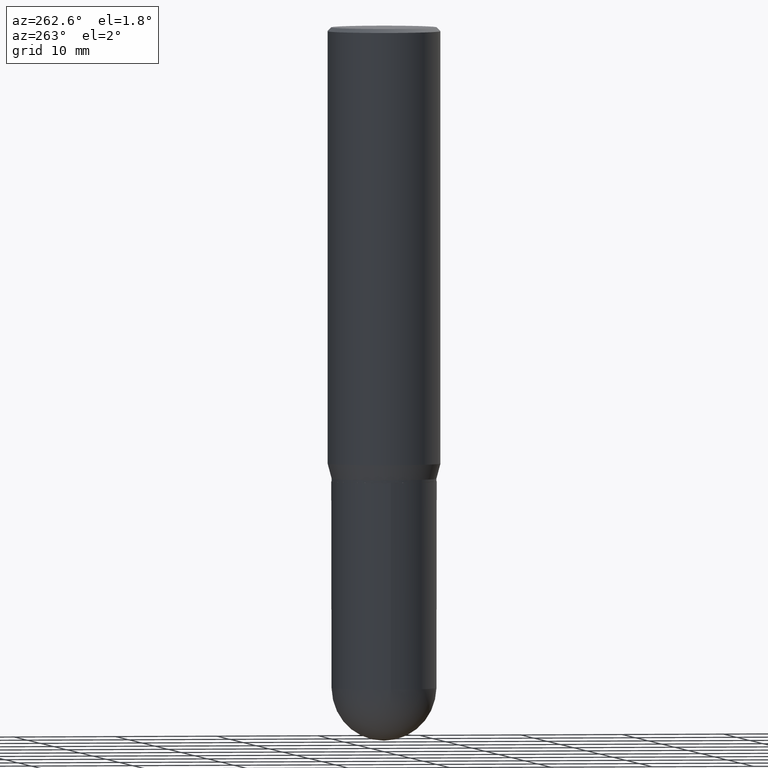
[diagram: clean part render]
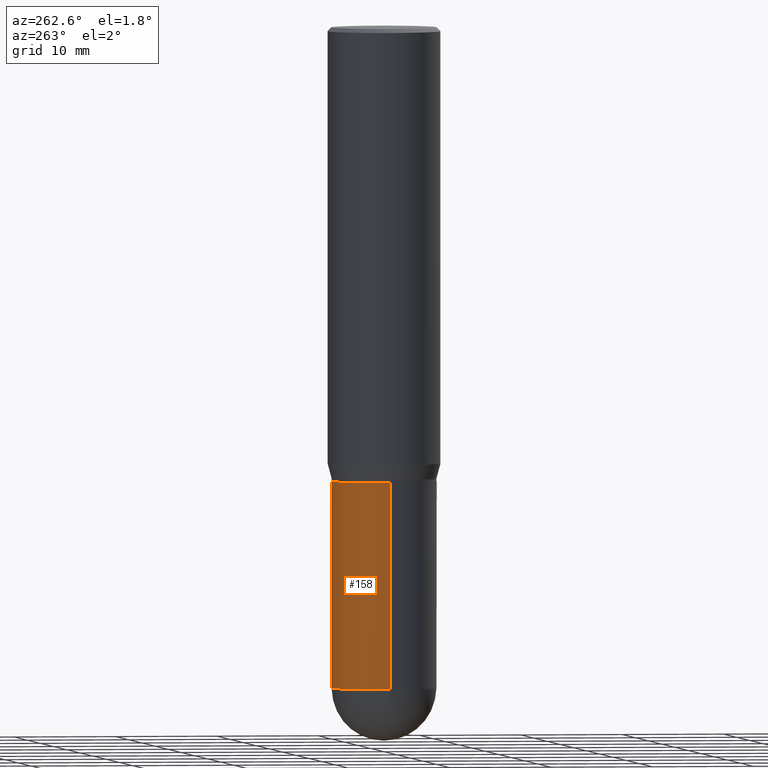
[diagram: same view with one face highlighted and labeled with its STEP entity id]
A machine part, auxiliary view. The second image highlights one B-rep face of the part: STEP entity #158.
In plain terms, the highlighted cylindrical surface (partial cylindrical patch) has radius 5.1587 mm, axis along (-0, 0, 1).
Its self-contained STEP definition (entity closure, byte-faithful):
#15 = CARTESIAN_POINT ( 'NONE',  ( 6.228364502472924746E-29, -8.892453821899607499E-15, -2.546899999999999942 ) ) ;
#18 = VECTOR ( 'NONE', #153, 39.37007874015748143 ) ;
#28 = VECTOR ( 'NONE', #161, 39.37007874015748143 ) ;
#29 = CARTESIAN_POINT ( 'NONE',  ( 0.000000000000000000, 0.000000000000000000, 0.000000000000000000 ) ) ;
#32 = DIRECTION ( 'NONE',  ( -2.445468806185136597E-29, 3.491481338843145583E-15, 1.000000000000000000 ) ) ;
#57 = AXIS2_PLACEMENT_3D ( 'NONE', #187, #348, #229 ) ;
#58 = CARTESIAN_POINT ( 'NONE',  ( -0.2031000000000000028, 1.443112296328763497E-15, -9.990357168307714203E-30 ) ) ;
#77 = AXIS2_PLACEMENT_3D ( 'NONE', #29, #32, #107 ) ;
#98 = ORIENTED_EDGE ( 'NONE', *, *, #241, .F. ) ;
#99 = LINE ( 'NONE', #58, #18 ) ;
#106 = VERTEX_POINT ( 'NONE', #460 ) ;
#107 = DIRECTION ( 'NONE',  ( 1.000000000000000000, -6.982962677686266711E-15, 4.876176775795935793E-29 ) ) ;
#125 = DIRECTION ( 'NONE',  ( -2.445468806185136597E-29, 3.491481338843145583E-15, 1.000000000000000000 ) ) ;
#147 = AXIS2_PLACEMENT_3D ( 'NONE', #190, #125, #432 ) ;
#152 = VERTEX_POINT ( 'NONE', #388 ) ;
#153 = DIRECTION ( 'NONE',  ( -2.445468806185136877E-29, 3.491481338843145188E-15, 1.000000000000000000 ) ) ;
#158 = ADVANCED_FACE ( 'NONE', ( #463 ), #453, .T. ) ;
#161 = DIRECTION ( 'NONE',  ( -2.445468806185136877E-29, 3.491481338843145188E-15, 1.000000000000000000 ) ) ;
#187 = CARTESIAN_POINT ( 'NONE',  ( 4.279570410823988484E-29, -6.110092342975504671E-15, -1.750000000000000000 ) ) ;
#190 = CARTESIAN_POINT ( 'NONE',  ( 6.228364502472924746E-29, -8.892453821899607499E-15, -2.546899999999999942 ) ) ;
#191 = LINE ( 'NONE', #508, #28 ) ;
#212 = EDGE_CURVE ( 'NONE', #470, #106, #99, .T. ) ;
#221 = ORIENTED_EDGE ( 'NONE', *, *, #251, .T. ) ;
#227 = ORIENTED_EDGE ( 'NONE', *, *, #403, .T. ) ;
#229 = DIRECTION ( 'NONE',  ( 1.000000000000000000, -6.982962677686269866E-15, 0.000000000000000000 ) ) ;
#241 = EDGE_CURVE ( 'NONE', #304, #106, #339, .T. ) ;
#251 = EDGE_CURVE ( 'NONE', #152, #470, #328, .T. ) ;
#259 = EDGE_LOOP ( 'NONE', ( #221, #464, #98, #415, #227 ) ) ;
#287 = CIRCLE ( 'NONE', #437, 0.2031000000000000583 ) ;
#304 = VERTEX_POINT ( 'NONE', #442 ) ;
#318 = DIRECTION ( 'NONE',  ( 1.000000000000000000, -6.982962677686262766E-15, 0.000000000000000000 ) ) ;
#328 = CIRCLE ( 'NONE', #147, 0.2031000000000000583 ) ;
#330 = EDGE_CURVE ( 'NONE', #451, #304, #191, .T. ) ;
#339 = CIRCLE ( 'NONE', #57, 0.2031000000000000028 ) ;
#348 = DIRECTION ( 'NONE',  ( -2.445468806185136597E-29, 3.491481338843145583E-15, 1.000000000000000000 ) ) ;
#388 = CARTESIAN_POINT ( 'NONE',  ( 1.418239719838142898E-15, 0.2030999999999910932, -2.546900000000000830 ) ) ;
#403 = EDGE_CURVE ( 'NONE', #451, #152, #287, .T. ) ;
#414 = CARTESIAN_POINT ( 'NONE',  ( 0.2031000000000000583, -8.919512802275635677E-15, -2.546899999999999942 ) ) ;
#415 = ORIENTED_EDGE ( 'NONE', *, *, #330, .F. ) ;
#432 = DIRECTION ( 'NONE',  ( 1.000000000000000000, -6.982962677686262766E-15, 0.000000000000000000 ) ) ;
#437 = AXIS2_PLACEMENT_3D ( 'NONE', #15, #450, #318 ) ;
#442 = CARTESIAN_POINT ( 'NONE',  ( 0.2031000000000000028, -7.528332062813585446E-15, -1.750000000000000000 ) ) ;
#450 = DIRECTION ( 'NONE',  ( -2.445468806185136597E-29, 3.491481338843145583E-15, 1.000000000000000000 ) ) ;
#451 = VERTEX_POINT ( 'NONE', #414 ) ;
#453 = CYLINDRICAL_SURFACE ( 'NONE', #77, 0.2031000000000000028 ) ;
#460 = CARTESIAN_POINT ( 'NONE',  ( -0.2031000000000000028, -6.058160786108792588E-15, -1.750000000000000000 ) ) ;
#463 = FACE_OUTER_BOUND ( 'NONE', #259, .T. ) ;
#464 = ORIENTED_EDGE ( 'NONE', *, *, #212, .T. ) ;
#470 = VERTEX_POINT ( 'NONE', #488 ) ;
#488 = CARTESIAN_POINT ( 'NONE',  ( -0.2031000000000000583, -6.058160786108791010E-15, -2.546899999999999942 ) ) ;
#508 = CARTESIAN_POINT ( 'NONE',  ( 0.2031000000000000028, -1.418239719838080775E-15, 9.903515031641546145E-30 ) ) ;